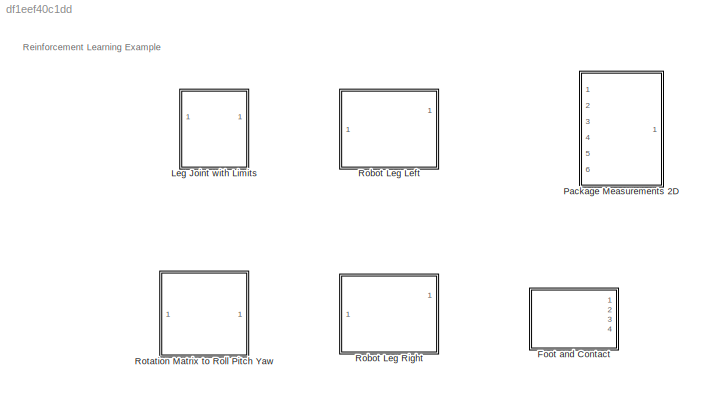
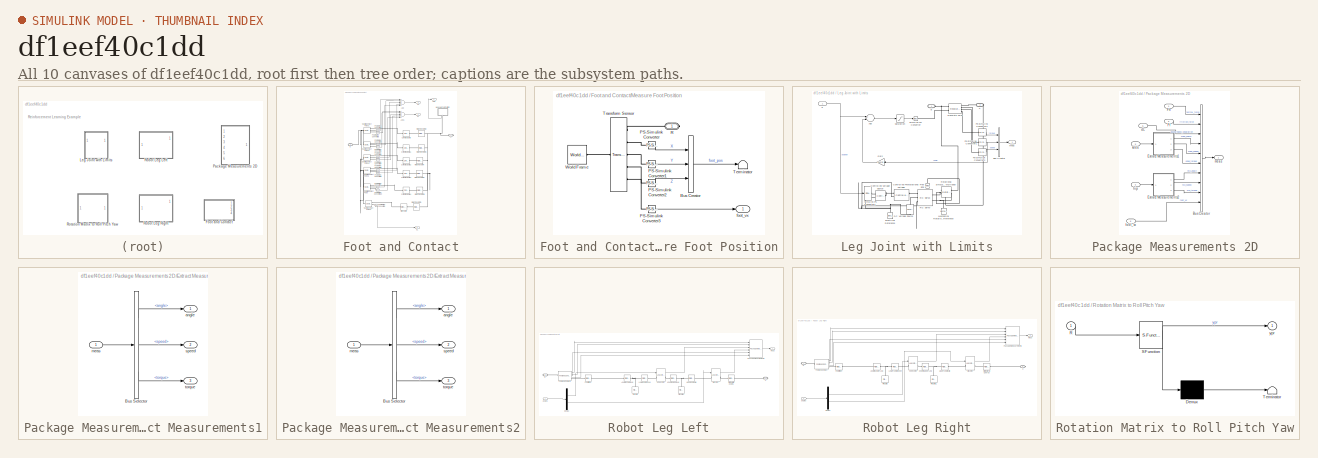
[diagram: thumbnail index - all 10 canvases of the model, root first then tree order]
MODEL slx_df1eef40c1dd
KIND library
CONFIG AbsTol = auto
CONFIG EnableMultiTasking = off
CONFIG FixedStep = auto
CONFIG MaxStep = auto
CONFIG MinStep = auto
CONFIG RelTol = 1e-3
CONFIG SampleTimeConstraint = Unconstrained
CONFIG Solver = VariableStepAuto
CONFIG SolverName = VariableStepAuto
CONFIG StartTime = 0.0
CONFIG StopTime = 10.0
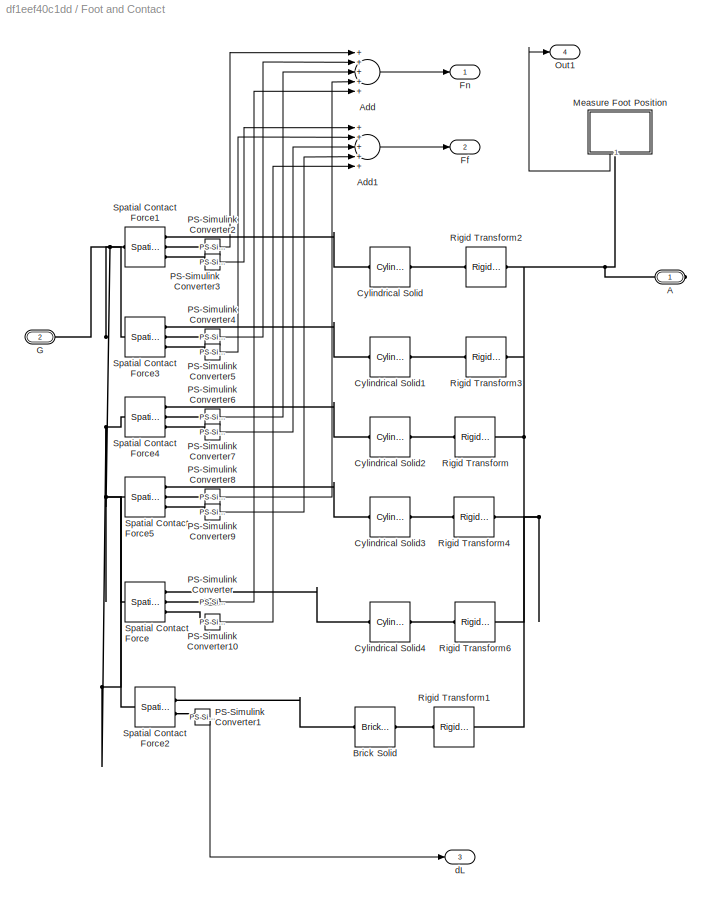
BLOCK [SubSystem] Foot and Contact
  Ports = [0, 4, 0, 0, 0, 1, 1]
  RequestExecContextInheritance = off
BLOCK [PMIOPort] Foot and Contact/A
  Side = Right
BLOCK [Sum] Foot and Contact/Add
  InputSameDT = off
  Inputs = +++++
  OutDataTypeStr = Inherit: Inherit via internal rule
  Ports = [5, 1]
  SaturateOnIntegerOverflow = off
BLOCK [Sum] Foot and Contact/Add1
  InputSameDT = off
  Inputs = +++++
  OutDataTypeStr = Inherit: Inherit via internal rule
  Ports = [5, 1]
  SaturateOnIntegerOverflow = off
BLOCK [Reference] Foot and Contact/Brick Solid  REF=sm_lib/Body Elements/Brick Solid
  Ports = [0, 0, 0, 0, 0, 1, 1]
  SourceBlock = sm_lib/Body Elements/Brick Solid
  SourceProductBaseCode = MS
  SourceProductName = Simscape Multibody
  SourceType = Brick Solid
BLOCK [Reference] Foot and Contact/Cylindrical Solid  REF=sm_lib/Body Elements/Cylindrical Solid
  Ports = [0, 0, 0, 0, 0, 1, 1]
  SourceBlock = sm_lib/Body Elements/Cylindrical Solid
  SourceProductBaseCode = MS
  SourceProductName = Simscape Multibody
  SourceType = Cylindrical Solid
BLOCK [Reference] Foot and Contact/Cylindrical Solid1  REF=sm_lib/Body Elements/Cylindrical Solid
  Ports = [0, 0, 0, 0, 0, 1, 1]
  SourceBlock = sm_lib/Body Elements/Cylindrical Solid
  SourceProductBaseCode = MS
  SourceProductName = Simscape Multibody
  SourceType = Cylindrical Solid
BLOCK [Reference] Foot and Contact/Cylindrical Solid2  REF=sm_lib/Body Elements/Cylindrical Solid
  Ports = [0, 0, 0, 0, 0, 1, 1]
  SourceBlock = sm_lib/Body Elements/Cylindrical Solid
  SourceProductBaseCode = MS
  SourceProductName = Simscape Multibody
  SourceType = Cylindrical Solid
BLOCK [Reference] Foot and Contact/Cylindrical Solid3  REF=sm_lib/Body Elements/Cylindrical Solid
  Ports = [0, 0, 0, 0, 0, 1, 1]
  SourceBlock = sm_lib/Body Elements/Cylindrical Solid
  SourceProductBaseCode = MS
  SourceProductName = Simscape Multibody
  SourceType = Cylindrical Solid
BLOCK [Reference] Foot and Contact/Cylindrical Solid4  REF=sm_lib/Body Elements/Cylindrical Solid
  Ports = [0, 0, 0, 0, 0, 1, 1]
  SourceBlock = sm_lib/Body Elements/Cylindrical Solid
  SourceProductBaseCode = MS
  SourceProductName = Simscape Multibody
  SourceType = Cylindrical Solid
BLOCK [Outport] Foot and Contact/Ff
  IconDisplay = Port number
  Port = 2
BLOCK [Outport] Foot and Contact/Fn
  IconDisplay = Port number
BLOCK [PMIOPort] Foot and Contact/G
  Port = 2
  Side = Left
BLOCK [SubSystem] Foot and Contact/Measure Foot Position
  Ports = [0, 1, 0, 0, 0, 0, 1]
  RequestExecContextInheritance = off
BLOCK [BusCreator] Foot and Contact/Measure Foot Position/Bus Creator
  DisplayOption = bar
  InheritFromInputs = on
  Inputs = 3
  Ports = [3, 1]
BLOCK [Reference] Foot and Contact/Measure Foot Position/PS-Simulink Converter  REF=nesl_utility/PS-Simulink
Converter
  Ports = [0, 1, 0, 0, 0, 1]
  SourceBlock = nesl_utility/PS-Simulink\nConverter
  SourceProductBaseCode = SS
  SourceProductName = Simscape
  SourceType = PS-Simulink\nConverter
BLOCK [Reference] Foot and Contact/Measure Foot Position/PS-Simulink Converter1  REF=nesl_utility/PS-Simulink
Converter
  Ports = [0, 1, 0, 0, 0, 1]
  SourceBlock = nesl_utility/PS-Simulink\nConverter
  SourceProductBaseCode = SS
  SourceProductName = Simscape
  SourceType = PS-Simulink\nConverter
BLOCK [Reference] Foot and Contact/Measure Foot Position/PS-Simulink Converter2  REF=nesl_utility/PS-Simulink
Converter
  Ports = [0, 1, 0, 0, 0, 1]
  SourceBlock = nesl_utility/PS-Simulink\nConverter
  SourceProductBaseCode = SS
  SourceProductName = Simscape
  SourceType = PS-Simulink\nConverter
BLOCK [Reference] Foot and Contact/Measure Foot Position/PS-Simulink Converter3  REF=nesl_utility/PS-Simulink
Converter
  Ports = [0, 1, 0, 0, 0, 1]
  SourceBlock = nesl_utility/PS-Simulink\nConverter
  SourceProductBaseCode = SS
  SourceProductName = Simscape
  SourceType = PS-Simulink\nConverter
BLOCK [PMIOPort] Foot and Contact/Measure Foot Position/R
  Side = Right
BLOCK [Terminator] Foot and Contact/Measure Foot Position/Terminator
BLOCK [Reference] Foot and Contact/Measure Foot Position/Transform Sensor  REF=sm_lib/Frames and
Transforms/Transform
Sensor
  Ports = [0, 0, 0, 0, 0, 1, 5]
  SourceBlock = sm_lib/Frames and\nTransforms/Transform\nSensor
  SourceProductBaseCode = MS
  SourceProductName = Simscape Multibody
  SourceType = Transform\nSensor
BLOCK [Reference] Foot and Contact/Measure Foot Position/World Frame  REF=sm_lib/Frames and
Transforms/World Frame
  Ports = [0, 0, 0, 0, 0, 0, 1]
  SourceBlock = sm_lib/Frames and\nTransforms/World Frame
  SourceProductBaseCode = MS
  SourceProductName = Simscape Multibody
  SourceType = World Frame
BLOCK [Outport] Foot and Contact/Measure Foot Position/foot_vx 
  IconDisplay = Port number
BLOCK [Outport] Foot and Contact/Out1
  IconDisplay = Port number
  Port = 4
BLOCK [Reference] Foot and Contact/PS-Simulink Converter  REF=nesl_utility/PS-Simulink
Converter
  Ports = [0, 1, 0, 0, 0, 1]
  SourceBlock = nesl_utility/PS-Simulink\nConverter
  SourceProductBaseCode = SS
  SourceProductName = Simscape
  SourceType = PS-Simulink\nConverter
BLOCK [Reference] Foot and Contact/PS-Simulink Converter1  REF=nesl_utility/PS-Simulink
Converter
  Ports = [0, 1, 0, 0, 0, 1]
  SourceBlock = nesl_utility/PS-Simulink\nConverter
  SourceProductBaseCode = SS
  SourceProductName = Simscape
  SourceType = PS-Simulink\nConverter
BLOCK [Reference] Foot and Contact/PS-Simulink Converter10  REF=nesl_utility/PS-Simulink
Converter
  Ports = [0, 1, 0, 0, 0, 1]
  SourceBlock = nesl_utility/PS-Simulink\nConverter
  SourceProductBaseCode = SS
  SourceProductName = Simscape
  SourceType = PS-Simulink\nConverter
BLOCK [Reference] Foot and Contact/PS-Simulink Converter2  REF=nesl_utility/PS-Simulink
Converter
  Ports = [0, 1, 0, 0, 0, 1]
  SourceBlock = nesl_utility/PS-Simulink\nConverter
  SourceProductBaseCode = SS
  SourceProductName = Simscape
  SourceType = PS-Simulink\nConverter
BLOCK [Reference] Foot and Contact/PS-Simulink Converter3  REF=nesl_utility/PS-Simulink
Converter
  Ports = [0, 1, 0, 0, 0, 1]
  SourceBlock = nesl_utility/PS-Simulink\nConverter
  SourceProductBaseCode = SS
  SourceProductName = Simscape
  SourceType = PS-Simulink\nConverter
BLOCK [Reference] Foot and Contact/PS-Simulink Converter4  REF=nesl_utility/PS-Simulink
Converter
  Ports = [0, 1, 0, 0, 0, 1]
  SourceBlock = nesl_utility/PS-Simulink\nConverter
  SourceProductBaseCode = SS
  SourceProductName = Simscape
  SourceType = PS-Simulink\nConverter
BLOCK [Reference] Foot and Contact/PS-Simulink Converter5  REF=nesl_utility/PS-Simulink
Converter
  Ports = [0, 1, 0, 0, 0, 1]
  SourceBlock = nesl_utility/PS-Simulink\nConverter
  SourceProductBaseCode = SS
  SourceProductName = Simscape
  SourceType = PS-Simulink\nConverter
BLOCK [Reference] Foot and Contact/PS-Simulink Converter6  REF=nesl_utility/PS-Simulink
Converter
  Ports = [0, 1, 0, 0, 0, 1]
  SourceBlock = nesl_utility/PS-Simulink\nConverter
  SourceProductBaseCode = SS
  SourceProductName = Simscape
  SourceType = PS-Simulink\nConverter
BLOCK [Reference] Foot and Contact/PS-Simulink Converter7  REF=nesl_utility/PS-Simulink
Converter
  Ports = [0, 1, 0, 0, 0, 1]
  SourceBlock = nesl_utility/PS-Simulink\nConverter
  SourceProductBaseCode = SS
  SourceProductName = Simscape
  SourceType = PS-Simulink\nConverter
BLOCK [Reference] Foot and Contact/PS-Simulink Converter8  REF=nesl_utility/PS-Simulink
Converter
  Ports = [0, 1, 0, 0, 0, 1]
  SourceBlock = nesl_utility/PS-Simulink\nConverter
  SourceProductBaseCode = SS
  SourceProductName = Simscape
  SourceType = PS-Simulink\nConverter
BLOCK [Reference] Foot and Contact/PS-Simulink Converter9  REF=nesl_utility/PS-Simulink
Converter
  Ports = [0, 1, 0, 0, 0, 1]
  SourceBlock = nesl_utility/PS-Simulink\nConverter
  SourceProductBaseCode = SS
  SourceProductName = Simscape
  SourceType = PS-Simulink\nConverter
BLOCK [Reference] Foot and Contact/Rigid Transform  REF=sm_lib/Frames and
Transforms/Rigid
Transform
  Ports = [0, 0, 0, 0, 0, 1, 1]
  SourceBlock = sm_lib/Frames and\nTransforms/Rigid\nTransform
  SourceProductBaseCode = MS
  SourceProductName = Simscape Multibody
  SourceType = Rigid\nTransform
BLOCK [Reference] Foot and Contact/Rigid Transform1  REF=sm_lib/Frames and
Transforms/Rigid
Transform
  Ports = [0, 0, 0, 0, 0, 1, 1]
  SourceBlock = sm_lib/Frames and\nTransforms/Rigid\nTransform
  SourceProductBaseCode = MS
  SourceProductName = Simscape Multibody
  SourceType = Rigid\nTransform
BLOCK [Reference] Foot and Contact/Rigid Transform2  REF=sm_lib/Frames and
Transforms/Rigid
Transform
  Ports = [0, 0, 0, 0, 0, 1, 1]
  SourceBlock = sm_lib/Frames and\nTransforms/Rigid\nTransform
  SourceProductBaseCode = MS
  SourceProductName = Simscape Multibody
  SourceType = Rigid\nTransform
BLOCK [Reference] Foot and Contact/Rigid Transform3  REF=sm_lib/Frames and
Transforms/Rigid
Transform
  Ports = [0, 0, 0, 0, 0, 1, 1]
  SourceBlock = sm_lib/Frames and\nTransforms/Rigid\nTransform
  SourceProductBaseCode = MS
  SourceProductName = Simscape Multibody
  SourceType = Rigid\nTransform
BLOCK [Reference] Foot and Contact/Rigid Transform4  REF=sm_lib/Frames and
Transforms/Rigid
Transform
  Ports = [0, 0, 0, 0, 0, 1, 1]
  SourceBlock = sm_lib/Frames and\nTransforms/Rigid\nTransform
  SourceProductBaseCode = MS
  SourceProductName = Simscape Multibody
  SourceType = Rigid\nTransform
BLOCK [Reference] Foot and Contact/Rigid Transform6  REF=sm_lib/Frames and
Transforms/Rigid
Transform
  Ports = [0, 0, 0, 0, 0, 1, 1]
  SourceBlock = sm_lib/Frames and\nTransforms/Rigid\nTransform
  SourceProductBaseCode = MS
  SourceProductName = Simscape Multibody
  SourceType = Rigid\nTransform
BLOCK [Reference] Foot and Contact/Spatial Contact Force  REF=sm_lib/Forces and
Torques/Spatial
Contact Force
  Ports = [0, 0, 0, 0, 0, 1, 3]
  SourceBlock = sm_lib/Forces and\nTorques/Spatial\nContact Force
  SourceProductBaseCode = MS
  SourceProductName = Simscape Multibody
  SourceType = Spatial\nContact Force
BLOCK [Reference] Foot and Contact/Spatial Contact Force1  REF=sm_lib/Forces and
Torques/Spatial
Contact Force
  Ports = [0, 0, 0, 0, 0, 1, 3]
  SourceBlock = sm_lib/Forces and\nTorques/Spatial\nContact Force
  SourceProductBaseCode = MS
  SourceProductName = Simscape Multibody
  SourceType = Spatial\nContact Force
BLOCK [Reference] Foot and Contact/Spatial Contact Force2  REF=sm_lib/Forces and
Torques/Spatial
Contact Force
  Ports = [0, 0, 0, 0, 0, 1, 2]
  SourceBlock = sm_lib/Forces and\nTorques/Spatial\nContact Force
  SourceProductBaseCode = MS
  SourceProductName = Simscape Multibody
  SourceType = Spatial\nContact Force
BLOCK [Reference] Foot and Contact/Spatial Contact Force3  REF=sm_lib/Forces and
Torques/Spatial
Contact Force
  Ports = [0, 0, 0, 0, 0, 1, 3]
  SourceBlock = sm_lib/Forces and\nTorques/Spatial\nContact Force
  SourceProductBaseCode = MS
  SourceProductName = Simscape Multibody
  SourceType = Spatial\nContact Force
BLOCK [Reference] Foot and Contact/Spatial Contact Force4  REF=sm_lib/Forces and
Torques/Spatial
Contact Force
  Ports = [0, 0, 0, 0, 0, 1, 3]
  SourceBlock = sm_lib/Forces and\nTorques/Spatial\nContact Force
  SourceProductBaseCode = MS
  SourceProductName = Simscape Multibody
  SourceType = Spatial\nContact Force
BLOCK [Reference] Foot and Contact/Spatial Contact Force5  REF=sm_lib/Forces and
Torques/Spatial
Contact Force
  Ports = [0, 0, 0, 0, 0, 1, 3]
  SourceBlock = sm_lib/Forces and\nTorques/Spatial\nContact Force
  SourceProductBaseCode = MS
  SourceProductName = Simscape Multibody
  SourceType = Spatial\nContact Force
BLOCK [Outport] Foot and Contact/dL
  IconDisplay = Port number
  Port = 3
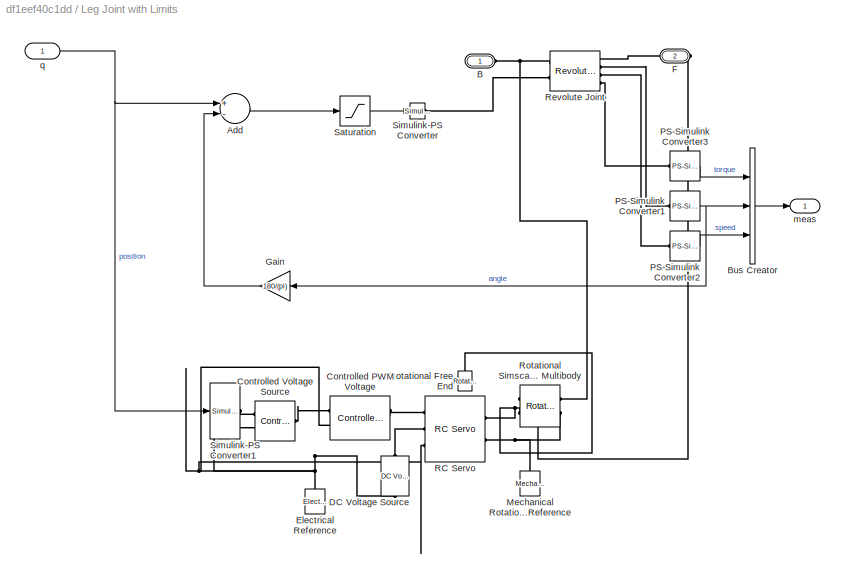
BLOCK [SubSystem] Leg Joint with Limits
  Ports = [1, 1, 0, 0, 0, 1, 1]
  RequestExecContextInheritance = off
  VariantControl = actuatorType == 2
BLOCK [Sum] Leg Joint with Limits/Add
  InputSameDT = off
  Inputs = +-
  OutDataTypeStr = Inherit: Inherit via internal rule
  Ports = [2, 1]
  SaturateOnIntegerOverflow = off
BLOCK [PMIOPort] Leg Joint with Limits/B
  Side = Left
BLOCK [BusCreator] Leg Joint with Limits/Bus Creator
  DisplayOption = bar
  InheritFromInputs = on
  Inputs = 3
  Ports = [3, 1]
BLOCK [Reference] Leg Joint with Limits/Controlled PWM Voltage  REF=ee_lib/Integrated Circuits/Controlled PWM
Voltage
  Commented = on
  Ports = [0, 0, 0, 0, 0, 2, 2]
  SourceBlock = ee_lib/Integrated Circuits/Controlled PWM\nVoltage
  SourceProductBaseCode = PS
  SourceProductName = Simscape Electrical
  SourceType = Controlled PWM\nVoltage
BLOCK [Reference] Leg Joint with Limits/Controlled Voltage Source  REF=fl_lib/Electrical/Electrical Sources/Controlled Voltage
Source
  Commented = on
  Ports = [0, 0, 0, 0, 0, 1, 2]
  SourceBlock = fl_lib/Electrical/Electrical Sources/Controlled Voltage\nSource
  SourceProductBaseCode = SS
  SourceProductName = Simscape
  SourceType = Controlled Voltage\nSource
BLOCK [Reference] Leg Joint with Limits/DC Voltage Source  REF=fl_lib/Electrical/Electrical Sources/DC Voltage Source
  Commented = on
  Ports = [0, 0, 0, 0, 0, 1, 1]
  SourceBlock = fl_lib/Electrical/Electrical Sources/DC Voltage Source
  SourceProductBaseCode = SS
  SourceProductName = Simscape
  SourceType = DC Voltage Source
BLOCK [Reference] Leg Joint with Limits/Electrical Reference  REF=fl_lib/Electrical/Electrical Elements/Electrical Reference
  Commented = on
  Ports = [0, 0, 0, 0, 0, 1]
  SourceBlock = fl_lib/Electrical/Electrical Elements/Electrical Reference
  SourceProductBaseCode = SS
  SourceProductName = Simscape
  SourceType = Electrical Reference
BLOCK [PMIOPort] Leg Joint with Limits/F
  Port = 2
  Side = Right
BLOCK [Gain] Leg Joint with Limits/Gain
  Gain = 180/(pi)
  OutDataTypeStr = Inherit: Inherit via internal rule
  ParamDataTypeStr = Inherit: Inherit via internal rule
  SaturateOnIntegerOverflow = off
BLOCK [Reference] Leg Joint with Limits/Mechanical Rotational Reference  REF=fl_lib/Mechanical/Rotational Elements/Mechanical
Rotational Reference
  Commented = on
  Ports = [0, 0, 0, 0, 0, 1]
  SourceBlock = fl_lib/Mechanical/Rotational Elements/Mechanical\nRotational Reference
  SourceProductBaseCode = SS
  SourceProductName = Simscape
  SourceType = Mechanical\nRotational Reference
BLOCK [Reference] Leg Joint with Limits/PS-Simulink Converter1  REF=nesl_utility/PS-Simulink
Converter
  Ports = [0, 1, 0, 0, 0, 1]
  SourceBlock = nesl_utility/PS-Simulink\nConverter
  SourceProductBaseCode = SS
  SourceProductName = Simscape
  SourceType = PS-Simulink\nConverter
BLOCK [Reference] Leg Joint with Limits/PS-Simulink Converter2  REF=nesl_utility/PS-Simulink
Converter
  Ports = [0, 1, 0, 0, 0, 1]
  SourceBlock = nesl_utility/PS-Simulink\nConverter
  SourceProductBaseCode = SS
  SourceProductName = Simscape
  SourceType = PS-Simulink\nConverter
BLOCK [Reference] Leg Joint with Limits/PS-Simulink Converter3  REF=nesl_utility/PS-Simulink
Converter
  Ports = [0, 1, 0, 0, 0, 1]
  SourceBlock = nesl_utility/PS-Simulink\nConverter
  SourceProductBaseCode = SS
  SourceProductName = Simscape
  SourceType = PS-Simulink\nConverter
BLOCK [Reference] Leg Joint with Limits/RC Servo  REF=ee_lib/Electromechanical/Brushed Motors/RC Servo
  Commented = on
  Ports = [0, 0, 0, 0, 0, 3, 2]
  SourceBlock = ee_lib/Electromechanical/Brushed Motors/RC Servo
  SourceProductBaseCode = PS
  SourceProductName = Simscape Electrical
  SourceType = RC Servo
BLOCK [Reference] Leg Joint with Limits/Revolute Joint  REF=sm_lib/Joints/Revolute Joint
  Ports = [0, 0, 0, 0, 0, 2, 4]
  SourceBlock = sm_lib/Joints/Revolute Joint
  SourceProductBaseCode = MS
  SourceProductName = Simscape Multibody
  SourceType = Revolute Joint
BLOCK [Reference] Leg Joint with Limits/Rotational Free End  REF=fl_lib/Mechanical/Rotational Elements/Rotational Free End
  Commented = on
  Ports = [0, 0, 0, 0, 0, 1]
  SourceBlock = fl_lib/Mechanical/Rotational Elements/Rotational Free End
  SourceProductBaseCode = SS
  SourceProductName = Simscape
  SourceType = Rotational Free End
BLOCK [Reference] Leg Joint with Limits/Rotational Simscape Multibody  REF=Multibody_Multiphysics_Lib/Interfaces/Rotational
Simscape Multibody
  Commented = on
  Ports = [0, 0, 0, 0, 0, 2, 2]
  SourceBlock = Multibody_Multiphysics_Lib/Interfaces/Rotational\nSimscape Multibody
  SourceProductName = Simscape Multibody Multiphysics Library
  SourceType = SubSystem
  Tag = PublishSubsystem
BLOCK [Saturate] Leg Joint with Limits/Saturation
  InputPortMap = u0
  LowerLimit = motor_speed_factor * (-1)
  Ports = [1, 1]
  UpperLimit = motor_speed_factor
BLOCK [Reference] Leg Joint with Limits/Simulink-PS Converter  REF=nesl_utility/Simulink-PS
Converter
  Ports = [1, 0, 0, 0, 0, 0, 1]
  SourceBlock = nesl_utility/Simulink-PS\nConverter
  SourceProductBaseCode = SS
  SourceProductName = Simscape
  SourceType = Simulink-PS\nConverter
BLOCK [Reference] Leg Joint with Limits/Simulink-PS Converter1  REF=nesl_utility/Simulink-PS
Converter
  Commented = on
  Ports = [1, 0, 0, 0, 0, 0, 1]
  SourceBlock = nesl_utility/Simulink-PS\nConverter
  SourceProductBaseCode = SS
  SourceProductName = Simscape
  SourceType = Simulink-PS\nConverter
BLOCK [Outport] Leg Joint with Limits/meas
  IconDisplay = Port number
  VectorParamsAs1DForOutWhenUnconnected = off
BLOCK [Inport] Leg Joint with Limits/q
  IconDisplay = Port number
BLOCK [SubSystem] Package Measurements 2D
  Ports = [6, 1]
  RequestExecContextInheritance = off
BLOCK [BusCreator] Package Measurements 2D/Bus Creator
  DisplayOption = bar
  InheritFromInputs = on
  Inputs = 10
  Ports = [10, 1]
BLOCK [SubSystem] Package Measurements 2D/Extract Measurements1
  Ports = [1, 3]
  RequestExecContextInheritance = off
BLOCK [BusSelector] Package Measurements 2D/Extract Measurements1/Bus Selector
  OutputAsBus = off
  OutputSignals = angle,speed,torque
  Ports = [1, 3]
BLOCK [Outport] Package Measurements 2D/Extract Measurements1/angle
  IconDisplay = Port number
  VectorParamsAs1DForOutWhenUnconnected = off
BLOCK [Inport] Package Measurements 2D/Extract Measurements1/meas
  IconDisplay = Port number
BLOCK [Outport] Package Measurements 2D/Extract Measurements1/speed
  IconDisplay = Port number
  Port = 2
  VectorParamsAs1DForOutWhenUnconnected = off
BLOCK [Outport] Package Measurements 2D/Extract Measurements1/torque
  IconDisplay = Port number
  Port = 3
  VectorParamsAs1DForOutWhenUnconnected = off
BLOCK [SubSystem] Package Measurements 2D/Extract Measurements2
  Ports = [1, 3]
  RequestExecContextInheritance = off
BLOCK [BusSelector] Package Measurements 2D/Extract Measurements2/Bus Selector
  OutputAsBus = off
  OutputSignals = angle,speed,torque
  Ports = [1, 3]
BLOCK [Outport] Package Measurements 2D/Extract Measurements2/angle
  IconDisplay = Port number
  VectorParamsAs1DForOutWhenUnconnected = off
BLOCK [Inport] Package Measurements 2D/Extract Measurements2/meas
  IconDisplay = Port number
BLOCK [Outport] Package Measurements 2D/Extract Measurements2/speed
  IconDisplay = Port number
  Port = 2
  VectorParamsAs1DForOutWhenUnconnected = off
BLOCK [Outport] Package Measurements 2D/Extract Measurements2/torque
  IconDisplay = Port number
  Port = 3
  VectorParamsAs1DForOutWhenUnconnected = off
BLOCK [Inport] Package Measurements 2D/Ff
  IconDisplay = Port number
  Port = 2
BLOCK [Inport] Package Measurements 2D/Fn
  IconDisplay = Port number
BLOCK [Inport] Package Measurements 2D/dL
  IconDisplay = Port number
  Port = 5
BLOCK [Inport] Package Measurements 2D/foot_vx
  IconDisplay = Port number
  Port = 6
BLOCK [Inport] Package Measurements 2D/hip
  IconDisplay = Port number
  Port = 4
BLOCK [Inport] Package Measurements 2D/knee
  IconDisplay = Port number
  Port = 3
BLOCK [Outport] Package Measurements 2D/meas
  IconDisplay = Port number
  VectorParamsAs1DForOutWhenUnconnected = off
BLOCK [SubSystem] Robot Leg Left
  Ports = [1, 1, 0, 0, 0, 0, 2]
  RequestExecContextInheritance = off
BLOCK [Reference] Robot Leg Left/Ankle to Lower Leg  REF=sm_lib/Frames and
Transforms/Rigid
Transform
  Ports = [0, 0, 0, 0, 0, 1, 1]
  SourceBlock = sm_lib/Frames and\nTransforms/Rigid\nTransform
  SourceProductBaseCode = MS
  SourceProductName = Simscape Multibody
  SourceType = Rigid\nTransform
BLOCK [Demux] Robot Leg Left/Demux
  DisplayOption = bar
  Outputs = 2
  Ports = [1, 2]
BLOCK [Reference] Robot Leg Left/File Solid  REF=sm_lib/Body Elements/File Solid
  Ports = [0, 0, 0, 0, 0, 1, 1]
  SourceBlock = sm_lib/Body Elements/File Solid
  SourceProductBaseCode = MS
  SourceProductName = Simscape Multibody
  SourceType = File Solid
BLOCK [Reference] Robot Leg Left/File Solid1  REF=sm_lib/Body Elements/File Solid
  Ports = [0, 0, 0, 0, 0, 1, 1]
  SourceBlock = sm_lib/Body Elements/File Solid
  SourceProductBaseCode = MS
  SourceProductName = Simscape Multibody
  SourceType = File Solid
BLOCK [Reference] Robot Leg Left/Foot Offset  REF=sm_lib/Frames and
Transforms/Rigid
Transform
  Ports = [0, 0, 0, 0, 0, 1, 1]
  SourceBlock = sm_lib/Frames and\nTransforms/Rigid\nTransform
  SourceProductBaseCode = MS
  SourceProductName = Simscape Multibody
  SourceType = Rigid\nTransform
BLOCK [Reference] Robot Leg Left/Foot and Contact1  REF=$bdroot/Foot and Contact
  Ports = [0, 4, 0, 0, 0, 1, 1]
  SourceBlock = $bdroot/Foot and Contact
  SourceType = SubSystem
BLOCK [PMIOPort] Robot Leg Left/G
  Side = Right
BLOCK [PMIOPort] Robot Leg Left/H
  Port = 2
  Side = Right
BLOCK [Reference] Robot Leg Left/Hip Joint  REF=$bdroot/Leg Joint with Limits
  Ports = [1, 1, 0, 0, 0, 1, 1]
  SourceBlock = $bdroot/Leg Joint with Limits
  SourceType = Leg Joint with Limits
BLOCK [Reference] Robot Leg Left/Hip to World Coords  REF=sm_lib/Frames and
Transforms/Rigid
Transform
  Ports = [0, 0, 0, 0, 0, 1, 1]
  SourceBlock = sm_lib/Frames and\nTransforms/Rigid\nTransform
  SourceProductBaseCode = MS
  SourceProductName = Simscape Multibody
  SourceType = Rigid\nTransform
BLOCK [Reference] Robot Leg Left/Knee Joint  REF=$bdroot/Leg Joint with Limits
  Ports = [1, 1, 0, 0, 0, 1, 1]
  SourceBlock = $bdroot/Leg Joint with Limits
  SourceType = Leg Joint with Limits
BLOCK [Reference] Robot Leg Left/Knee to Upper Leg  REF=sm_lib/Frames and
Transforms/Rigid
Transform
  Ports = [0, 0, 0, 0, 0, 1, 1]
  SourceBlock = sm_lib/Frames and\nTransforms/Rigid\nTransform
  SourceProductBaseCode = MS
  SourceProductName = Simscape Multibody
  SourceType = Rigid\nTransform
BLOCK [Reference] Robot Leg Left/Lower Leg to Knee  REF=sm_lib/Frames and
Transforms/Rigid
Transform
  Ports = [0, 0, 0, 0, 0, 1, 1]
  SourceBlock = sm_lib/Frames and\nTransforms/Rigid\nTransform
  SourceProductBaseCode = MS
  SourceProductName = Simscape Multibody
  SourceType = Rigid\nTransform
BLOCK [Reference] Robot Leg Left/Package Measurements  REF=$bdroot/Package 
Measurements 2D
  Ports = [6, 1]
  SourceBlock = $bdroot/Package \nMeasurements 2D
  SourceType = SubSystem
BLOCK [Reference] Robot Leg Left/Upper Leg to Hip  REF=sm_lib/Frames and
Transforms/Rigid
Transform
  Ports = [0, 0, 0, 0, 0, 1, 1]
  SourceBlock = sm_lib/Frames and\nTransforms/Rigid\nTransform
  SourceProductBaseCode = MS
  SourceProductName = Simscape Multibody
  SourceType = Rigid\nTransform
BLOCK [Inport] Robot Leg Left/angles
  IconDisplay = Port number
BLOCK [Outport] Robot Leg Left/meas
  IconDisplay = Port number
  VectorParamsAs1DForOutWhenUnconnected = off
BLOCK [SubSystem] Robot Leg Right
  Ports = [1, 1, 0, 0, 0, 0, 2]
  RequestExecContextInheritance = off
BLOCK [Reference] Robot Leg Right/Ankle to Lower Leg  REF=sm_lib/Frames and
Transforms/Rigid
Transform
  Ports = [0, 0, 0, 0, 0, 1, 1]
  SourceBlock = sm_lib/Frames and\nTransforms/Rigid\nTransform
  SourceProductBaseCode = MS
  SourceProductName = Simscape Multibody
  SourceType = Rigid\nTransform
BLOCK [Demux] Robot Leg Right/Demux
  DisplayOption = bar
  Outputs = 2
  Ports = [1, 2]
BLOCK [Reference] Robot Leg Right/File Solid  REF=sm_lib/Body Elements/File Solid
  Ports = [0, 0, 0, 0, 0, 1, 1]
  SourceBlock = sm_lib/Body Elements/File Solid
  SourceProductBaseCode = MS
  SourceProductName = Simscape Multibody
  SourceType = File Solid
BLOCK [Reference] Robot Leg Right/File Solid1  REF=sm_lib/Body Elements/File Solid
  Ports = [0, 0, 0, 0, 0, 1, 1]
  SourceBlock = sm_lib/Body Elements/File Solid
  SourceProductBaseCode = MS
  SourceProductName = Simscape Multibody
  SourceType = File Solid
BLOCK [Reference] Robot Leg Right/Foot Offset  REF=sm_lib/Frames and
Transforms/Rigid
Transform
  Ports = [0, 0, 0, 0, 0, 1, 1]
  SourceBlock = sm_lib/Frames and\nTransforms/Rigid\nTransform
  SourceProductBaseCode = MS
  SourceProductName = Simscape Multibody
  SourceType = Rigid\nTransform
BLOCK [Reference] Robot Leg Right/Foot and Contact  REF=$bdroot/Foot and Contact
  Ports = [0, 4, 0, 0, 0, 1, 1]
  SourceBlock = $bdroot/Foot and Contact
  SourceType = SubSystem
BLOCK [PMIOPort] Robot Leg Right/G
  Side = Right
BLOCK [PMIOPort] Robot Leg Right/H
  Port = 2
  Side = Right
BLOCK [Reference] Robot Leg Right/Hip Joint  REF=$bdroot/Leg Joint with Limits
  Ports = [1, 1, 0, 0, 0, 1, 1]
  SourceBlock = $bdroot/Leg Joint with Limits
  SourceType = Leg Joint with Limits
BLOCK [Reference] Robot Leg Right/Hip to World Coords  REF=sm_lib/Frames and
Transforms/Rigid
Transform
  Ports = [0, 0, 0, 0, 0, 1, 1]
  SourceBlock = sm_lib/Frames and\nTransforms/Rigid\nTransform
  SourceProductBaseCode = MS
  SourceProductName = Simscape Multibody
  SourceType = Rigid\nTransform
BLOCK [Reference] Robot Leg Right/Knee Joint  REF=$bdroot/Leg Joint with Limits
  Ports = [1, 1, 0, 0, 0, 1, 1]
  SourceBlock = $bdroot/Leg Joint with Limits
  SourceType = Leg Joint with Limits
BLOCK [Reference] Robot Leg Right/Knee to Upper Leg  REF=sm_lib/Frames and
Transforms/Rigid
Transform
  Ports = [0, 0, 0, 0, 0, 1, 1]
  SourceBlock = sm_lib/Frames and\nTransforms/Rigid\nTransform
  SourceProductBaseCode = MS
  SourceProductName = Simscape Multibody
  SourceType = Rigid\nTransform
BLOCK [Reference] Robot Leg Right/Lower Leg to Knee  REF=sm_lib/Frames and
Transforms/Rigid
Transform
  Ports = [0, 0, 0, 0, 0, 1, 1]
  SourceBlock = sm_lib/Frames and\nTransforms/Rigid\nTransform
  SourceProductBaseCode = MS
  SourceProductName = Simscape Multibody
  SourceType = Rigid\nTransform
BLOCK [Reference] Robot Leg Right/Package Measurements  REF=$bdroot/Package 
Measurements 2D
  Ports = [6, 1]
  SourceBlock = $bdroot/Package \nMeasurements 2D
  SourceType = SubSystem
BLOCK [Reference] Robot Leg Right/Upper Leg to Hip  REF=sm_lib/Frames and
Transforms/Rigid
Transform
  Ports = [0, 0, 0, 0, 0, 1, 1]
  SourceBlock = sm_lib/Frames and\nTransforms/Rigid\nTransform
  SourceProductBaseCode = MS
  SourceProductName = Simscape Multibody
  SourceType = Rigid\nTransform
BLOCK [Inport] Robot Leg Right/angles
  IconDisplay = Port number
BLOCK [Outport] Robot Leg Right/meas
  IconDisplay = Port number
  VectorParamsAs1DForOutWhenUnconnected = off
BLOCK [SubSystem] Rotation Matrix to Roll Pitch Yaw
  ErrorFcn = Stateflow.Translate.translate
  PermitHierarchicalResolution = ExplicitOnly
  Ports = [1, 1]
  RequestExecContextInheritance = off
  SFBlockType = MATLAB Function
  TreatAsAtomicUnit = on
BLOCK [Demux] Rotation Matrix to Roll Pitch Yaw/ Demux 
  Outputs = 1
  Ports = [1, 1]
BLOCK [S-Function] Rotation Matrix to Roll Pitch Yaw/ SFunction 
  EnableBusSupport = off
  FunctionName = sf_sfun
  PortCounts = [1 2]
  Ports = [1, 2]
  SFcnIsStateOwnerBlock = off
  SFunctionDeploymentMode = off
  Tag = Stateflow S-Function 1
BLOCK [Terminator] Rotation Matrix to Roll Pitch Yaw/ Terminator 
BLOCK [Inport] Rotation Matrix to Roll Pitch Yaw/R
  IconDisplay = Port number
BLOCK [Outport] Rotation Matrix to Roll Pitch Yaw/ypr
  IconDisplay = Port number
  VectorParamsAs1DForOutWhenUnconnected = off
ANNOTATION (root): Reinforcement Learning Example
LINE Foot and Contact/Add1:1 -> Foot and Contact/Ff:1
LINE Foot and Contact/Add:1 -> Foot and Contact/Fn:1
LINE Foot and Contact/Measure Foot Position/Bus Creator:1 -> Foot and Contact/Measure Foot Position/Terminator:1
LINE Foot and Contact/Measure Foot Position/PS-Simulink Converter1:1 -> Foot and Contact/Measure Foot Position/Bus Creator:2
LINE Foot and Contact/Measure Foot Position/PS-Simulink Converter2:1 -> Foot and Contact/Measure Foot Position/Bus Creator:3
LINE Foot and Contact/Measure Foot Position/PS-Simulink Converter3:1 -> Foot and Contact/Measure Foot Position/foot_vx :1
LINE Foot and Contact/Measure Foot Position/PS-Simulink Converter:1 -> Foot and Contact/Measure Foot Position/Bus Creator:1
LINE Foot and Contact/Measure Foot Position:1 -> Foot and Contact/Out1:1
LINE Foot and Contact/PS-Simulink Converter10:1 -> Foot and Contact/Add1:5
LINE Foot and Contact/PS-Simulink Converter1:1 -> Foot and Contact/dL:1
LINE Foot and Contact/PS-Simulink Converter2:1 -> Foot and Contact/Add:1
LINE Foot and Contact/PS-Simulink Converter3:1 -> Foot and Contact/Add1:1
LINE Foot and Contact/PS-Simulink Converter4:1 -> Foot and Contact/Add:2
LINE Foot and Contact/PS-Simulink Converter5:1 -> Foot and Contact/Add1:2
LINE Foot and Contact/PS-Simulink Converter6:1 -> Foot and Contact/Add:3
LINE Foot and Contact/PS-Simulink Converter7:1 -> Foot and Contact/Add1:3
LINE Foot and Contact/PS-Simulink Converter8:1 -> Foot and Contact/Add:4
LINE Foot and Contact/PS-Simulink Converter9:1 -> Foot and Contact/Add1:4
LINE Foot and Contact/PS-Simulink Converter:1 -> Foot and Contact/Add:5
LINE Leg Joint with Limits/Add:1 -> Leg Joint with Limits/Saturation:1
LINE Leg Joint with Limits/Bus Creator:1 -> Leg Joint with Limits/meas:1
LINE Leg Joint with Limits/Gain:1 -> Leg Joint with Limits/Add:2
NET Leg Joint with Limits/PS-Simulink Converter1:1 -> Leg Joint with Limits/Bus Creator:2, Leg Joint with Limits/Gain:1
LINE Leg Joint with Limits/PS-Simulink Converter2:1 -> Leg Joint with Limits/Bus Creator:3
LINE Leg Joint with Limits/PS-Simulink Converter3:1 -> Leg Joint with Limits/Bus Creator:1
LINE Leg Joint with Limits/Saturation:1 -> Leg Joint with Limits/Simulink-PS Converter:1
NET Leg Joint with Limits/q:1 -> Leg Joint with Limits/Add:1, Leg Joint with Limits/Simulink-PS Converter1:1
LINE Package Measurements 2D/Bus Creator:1 -> Package Measurements 2D/meas:1
LINE Package Measurements 2D/Extract Measurements1/Bus Selector:1 -> Package Measurements 2D/Extract Measurements1/angle:1
LINE Package Measurements 2D/Extract Measurements1/Bus Selector:2 -> Package Measurements 2D/Extract Measurements1/speed:1
LINE Package Measurements 2D/Extract Measurements1/Bus Selector:3 -> Package Measurements 2D/Extract Measurements1/torque:1
LINE Package Measurements 2D/Extract Measurements1/meas:1 -> Package Measurements 2D/Extract Measurements1/Bus Selector:1
LINE Package Measurements 2D/Extract Measurements1:1 -> Package Measurements 2D/Bus Creator:4
LINE Package Measurements 2D/Extract Measurements1:2 -> Package Measurements 2D/Bus Creator:5
LINE Package Measurements 2D/Extract Measurements1:3 -> Package Measurements 2D/Bus Creator:6
LINE Package Measurements 2D/Extract Measurements2/Bus Selector:1 -> Package Measurements 2D/Extract Measurements2/angle:1
LINE Package Measurements 2D/Extract Measurements2/Bus Selector:2 -> Package Measurements 2D/Extract Measurements2/speed:1
LINE Package Measurements 2D/Extract Measurements2/Bus Selector:3 -> Package Measurements 2D/Extract Measurements2/torque:1
LINE Package Measurements 2D/Extract Measurements2/meas:1 -> Package Measurements 2D/Extract Measurements2/Bus Selector:1
LINE Package Measurements 2D/Extract Measurements2:1 -> Package Measurements 2D/Bus Creator:7
LINE Package Measurements 2D/Extract Measurements2:2 -> Package Measurements 2D/Bus Creator:8
LINE Package Measurements 2D/Extract Measurements2:3 -> Package Measurements 2D/Bus Creator:9
LINE Package Measurements 2D/Ff:1 -> Package Measurements 2D/Bus Creator:2
LINE Package Measurements 2D/Fn:1 -> Package Measurements 2D/Bus Creator:1
LINE Package Measurements 2D/dL:1 -> Package Measurements 2D/Bus Creator:3
LINE Package Measurements 2D/foot_vx:1 -> Package Measurements 2D/Bus Creator:10
LINE Package Measurements 2D/hip:1 -> Package Measurements 2D/Extract Measurements2:1
LINE Package Measurements 2D/knee:1 -> Package Measurements 2D/Extract Measurements1:1
LINE Robot Leg Left/Demux:1 -> Robot Leg Left/Knee Joint:1
LINE Robot Leg Left/Demux:2 -> Robot Leg Left/Hip Joint:1
LINE Robot Leg Left/Foot and Contact1:1 -> Robot Leg Left/Package Measurements:1
LINE Robot Leg Left/Foot and Contact1:2 -> Robot Leg Left/Package Measurements:2
LINE Robot Leg Left/Foot and Contact1:3 -> Robot Leg Left/Package Measurements:5
LINE Robot Leg Left/Foot and Contact1:4 -> Robot Leg Left/Package Measurements:6
LINE Robot Leg Left/Hip Joint:1 -> Robot Leg Left/Package Measurements:4
LINE Robot Leg Left/Knee Joint:1 -> Robot Leg Left/Package Measurements:3
LINE Robot Leg Left/Package Measurements:1 -> Robot Leg Left/meas:1
LINE Robot Leg Left/angles:1 -> Robot Leg Left/Demux:1
LINE Robot Leg Right/Demux:1 -> Robot Leg Right/Knee Joint:1
LINE Robot Leg Right/Demux:2 -> Robot Leg Right/Hip Joint:1
LINE Robot Leg Right/Foot and Contact:1 -> Robot Leg Right/Package Measurements:1
LINE Robot Leg Right/Foot and Contact:2 -> Robot Leg Right/Package Measurements:2
LINE Robot Leg Right/Foot and Contact:3 -> Robot Leg Right/Package Measurements:5
LINE Robot Leg Right/Foot and Contact:4 -> Robot Leg Right/Package Measurements:6
LINE Robot Leg Right/Hip Joint:1 -> Robot Leg Right/Package Measurements:4
LINE Robot Leg Right/Knee Joint:1 -> Robot Leg Right/Package Measurements:3
LINE Robot Leg Right/Package Measurements:1 -> Robot Leg Right/meas:1
LINE Robot Leg Right/angles:1 -> Robot Leg Right/Demux:1
PNET net1: Foot and Contact/A:RConn1 -- Foot and Contact/Measure Foot Position:RConn1 -- Foot and Contact/Rigid Transform1:LConn1 -- Foot and Contact/Rigid Transform2:LConn1 -- Foot and Contact/Rigid Transform3:RConn1 -- Foot and Contact/Rigid Transform4:RConn1 -- Foot and Contact/Rigid Transform6:RConn1 -- Foot and Contact/Rigid Transform:RConn1
PLINE Foot and Contact/Brick Solid:LConn1 -- Foot and Contact/Spatial Contact Force2:RConn1
PLINE Foot and Contact/Brick Solid:RConn1 -- Foot and Contact/Rigid Transform1:RConn1
PLINE Foot and Contact/Cylindrical Solid1:LConn1 -- Foot and Contact/Spatial Contact Force3:RConn1
PLINE Foot and Contact/Cylindrical Solid1:RConn1 -- Foot and Contact/Rigid Transform3:LConn1
PLINE Foot and Contact/Cylindrical Solid2:LConn1 -- Foot and Contact/Spatial Contact Force4:RConn1
PLINE Foot and Contact/Cylindrical Solid2:RConn1 -- Foot and Contact/Rigid Transform:LConn1
PLINE Foot and Contact/Cylindrical Solid3:LConn1 -- Foot and Contact/Spatial Contact Force5:RConn1
PLINE Foot and Contact/Cylindrical Solid3:RConn1 -- Foot and Contact/Rigid Transform4:LConn1
PLINE Foot and Contact/Cylindrical Solid4:LConn1 -- Foot and Contact/Spatial Contact Force:RConn1
PLINE Foot and Contact/Cylindrical Solid4:RConn1 -- Foot and Contact/Rigid Transform6:LConn1
PLINE Foot and Contact/Cylindrical Solid:LConn1 -- Foot and Contact/Spatial Contact Force1:RConn1
PLINE Foot and Contact/Cylindrical Solid:RConn1 -- Foot and Contact/Rigid Transform2:RConn1
PNET net2: Foot and Contact/G:RConn1 -- Foot and Contact/Spatial Contact Force1:LConn1 -- Foot and Contact/Spatial Contact Force2:LConn1 -- Foot and Contact/Spatial Contact Force3:LConn1 -- Foot and Contact/Spatial Contact Force4:LConn1 -- Foot and Contact/Spatial Contact Force5:LConn1 -- Foot and Contact/Spatial Contact Force:LConn1
PLINE Foot and Contact/Measure Foot Position/PS-Simulink Converter1:LConn1 -- Foot and Contact/Measure Foot Position/Transform Sensor:RConn3
PLINE Foot and Contact/Measure Foot Position/PS-Simulink Converter2:LConn1 -- Foot and Contact/Measure Foot Position/Transform Sensor:RConn4
PLINE Foot and Contact/Measure Foot Position/PS-Simulink Converter3:LConn1 -- Foot and Contact/Measure Foot Position/Transform Sensor:RConn5
PLINE Foot and Contact/Measure Foot Position/PS-Simulink Converter:LConn1 -- Foot and Contact/Measure Foot Position/Transform Sensor:RConn2
PLINE Foot and Contact/Measure Foot Position/R:RConn1 -- Foot and Contact/Measure Foot Position/Transform Sensor:RConn1
PLINE Foot and Contact/Measure Foot Position/Transform Sensor:LConn1 -- Foot and Contact/Measure Foot Position/World Frame:RConn1
PLINE Foot and Contact/PS-Simulink Converter10:LConn1 -- Foot and Contact/Spatial Contact Force:RConn3
PLINE Foot and Contact/PS-Simulink Converter1:LConn1 -- Foot and Contact/Spatial Contact Force2:RConn2
PLINE Foot and Contact/PS-Simulink Converter2:LConn1 -- Foot and Contact/Spatial Contact Force1:RConn2
PLINE Foot and Contact/PS-Simulink Converter3:LConn1 -- Foot and Contact/Spatial Contact Force1:RConn3
PLINE Foot and Contact/PS-Simulink Converter4:LConn1 -- Foot and Contact/Spatial Contact Force3:RConn2
PLINE Foot and Contact/PS-Simulink Converter5:LConn1 -- Foot and Contact/Spatial Contact Force3:RConn3
PLINE Foot and Contact/PS-Simulink Converter6:LConn1 -- Foot and Contact/Spatial Contact Force4:RConn2
PLINE Foot and Contact/PS-Simulink Converter7:LConn1 -- Foot and Contact/Spatial Contact Force4:RConn3
PLINE Foot and Contact/PS-Simulink Converter8:LConn1 -- Foot and Contact/Spatial Contact Force5:RConn2
PLINE Foot and Contact/PS-Simulink Converter9:LConn1 -- Foot and Contact/Spatial Contact Force5:RConn3
PLINE Foot and Contact/PS-Simulink Converter:LConn1 -- Foot and Contact/Spatial Contact Force:RConn2
PNET net3: Leg Joint with Limits/B:RConn1 -- Leg Joint with Limits/Revolute Joint:LConn1 -- Leg Joint with Limits/Rotational Simscape Multibody:LConn1
PLINE Leg Joint with Limits/Controlled PWM Voltage:LConn1 -- Leg Joint with Limits/Controlled Voltage Source:LConn1
PNET net4: Leg Joint with Limits/Controlled PWM Voltage:LConn2 -- Leg Joint with Limits/Controlled Voltage Source:RConn2 -- Leg Joint with Limits/DC Voltage Source:RConn1 -- Leg Joint with Limits/Electrical Reference:LConn1 -- Leg Joint with Limits/RC Servo:LConn3
PLINE Leg Joint with Limits/Controlled PWM Voltage:RConn1 -- Leg Joint with Limits/RC Servo:LConn1
PLINE Leg Joint with Limits/Controlled Voltage Source:RConn1 -- Leg Joint with Limits/Simulink-PS Converter1:RConn1
PLINE Leg Joint with Limits/DC Voltage Source:LConn1 -- Leg Joint with Limits/RC Servo:LConn2
PNET net5: Leg Joint with Limits/F:RConn1 -- Leg Joint with Limits/Revolute Joint:RConn1 -- Leg Joint with Limits/Rotational Simscape Multibody:RConn1
PNET net6: Leg Joint with Limits/Mechanical Rotational Reference:LConn1 -- Leg Joint with Limits/RC Servo:RConn2 -- Leg Joint with Limits/Rotational Simscape Multibody:LConn2
PLINE Leg Joint with Limits/PS-Simulink Converter1:LConn1 -- Leg Joint with Limits/Revolute Joint:RConn2
PLINE Leg Joint with Limits/PS-Simulink Converter2:LConn1 -- Leg Joint with Limits/Revolute Joint:RConn3
PLINE Leg Joint with Limits/PS-Simulink Converter3:LConn1 -- Leg Joint with Limits/Revolute Joint:RConn4
PNET net7: Leg Joint with Limits/RC Servo:RConn1 -- Leg Joint with Limits/Rotational Free End:LConn1 -- Leg Joint with Limits/Rotational Simscape Multibody:RConn2
PLINE Leg Joint with Limits/Revolute Joint:LConn2 -- Leg Joint with Limits/Simulink-PS Converter:RConn1
PLINE Robot Leg Left/Ankle to Lower Leg:LConn1 -- Robot Leg Left/Foot Offset:RConn1
PNET net8: Robot Leg Left/Ankle to Lower Leg:RConn1 -- Robot Leg Left/File Solid:LConn1 -- Robot Leg Left/Lower Leg to Knee:LConn1
PNET net9: Robot Leg Left/File Solid1:LConn1 -- Robot Leg Left/Knee to Upper Leg:RConn1 -- Robot Leg Left/Upper Leg to Hip:LConn1
PLINE Robot Leg Left/Foot Offset:LConn1 -- Robot Leg Left/Foot and Contact1:RConn1
PLINE Robot Leg Left/Foot and Contact1:LConn1 -- Robot Leg Left/G:RConn1
PLINE Robot Leg Left/H:RConn1 -- Robot Leg Left/Hip to World Coords:RConn1
PLINE Robot Leg Left/Hip Joint:LConn1 -- Robot Leg Left/Upper Leg to Hip:RConn1
PLINE Robot Leg Left/Hip Joint:RConn1 -- Robot Leg Left/Hip to World Coords:LConn1
PLINE Robot Leg Left/Knee Joint:LConn1 -- Robot Leg Left/Lower Leg to Knee:RConn1
PLINE Robot Leg Left/Knee Joint:RConn1 -- Robot Leg Left/Knee to Upper Leg:LConn1
PLINE Robot Leg Right/Ankle to Lower Leg:LConn1 -- Robot Leg Right/Foot Offset:RConn1
PNET net10: Robot Leg Right/Ankle to Lower Leg:RConn1 -- Robot Leg Right/File Solid:LConn1 -- Robot Leg Right/Lower Leg to Knee:LConn1
PNET net11: Robot Leg Right/File Solid1:LConn1 -- Robot Leg Right/Knee to Upper Leg:RConn1 -- Robot Leg Right/Upper Leg to Hip:LConn1
PLINE Robot Leg Right/Foot Offset:LConn1 -- Robot Leg Right/Foot and Contact:RConn1
PLINE Robot Leg Right/Foot and Contact:LConn1 -- Robot Leg Right/G:RConn1
PLINE Robot Leg Right/H:RConn1 -- Robot Leg Right/Hip to World Coords:RConn1
PLINE Robot Leg Right/Hip Joint:LConn1 -- Robot Leg Right/Upper Leg to Hip:RConn1
PLINE Robot Leg Right/Hip Joint:RConn1 -- Robot Leg Right/Hip to World Coords:LConn1
PLINE Robot Leg Right/Knee Joint:LConn1 -- Robot Leg Right/Lower Leg to Knee:RConn1
PLINE Robot Leg Right/Knee Joint:RConn1 -- Robot Leg Right/Knee to Upper Leg:LConn1
note: NET lines group one-source signal fan-out (src -> all destinations, sorted); 1:1 wires keep LINE; PNET lines group multi-terminal physical nets as a canonical sorted terminal list (undirected conserving connections); 2-terminal nets keep the pairwise PLINE form
CHART Rotation Matrix to 
Roll Pitch Yaw states=1 transitions=1
  STATE_LABEL 'eML_blk_kernel()'
  STATE_LABEL 'SCRIPT:\nfunction ypr = calcAttitude(R)\n\nypr = [atan2(R(2,1),R(1,1)); ...\n       atan2(-R(3,1),sqrt(R(3,2)^2 + R(3,3)^2)); ...\n       atan2(R(3,2),R(3,3))];'
